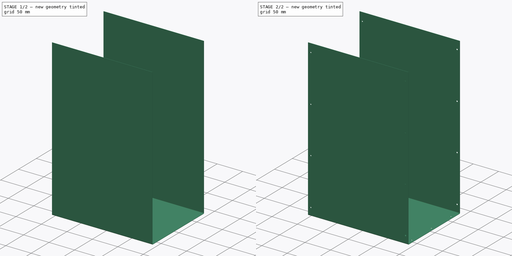
[diagram: build sequence overview — one tinted view per stage of 2, left to right]
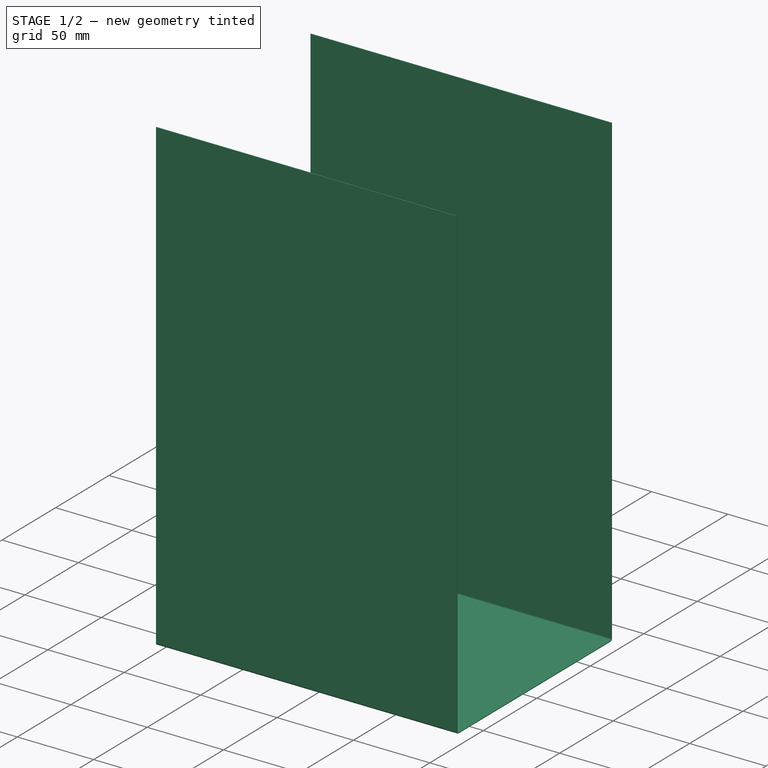
[diagram: stage 1 of 2 — iso view after this stage's code; geometry added in this stage tinted green]
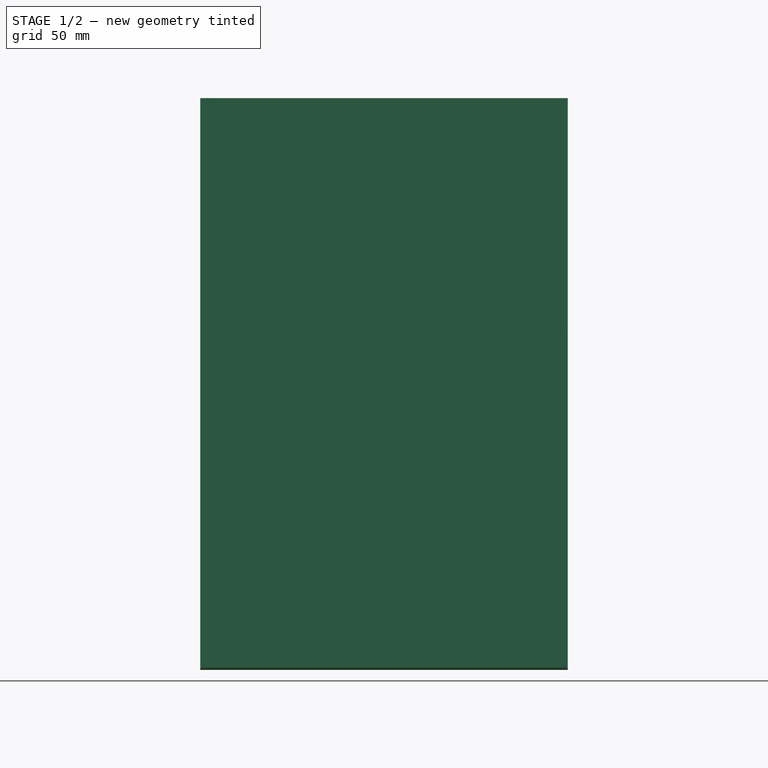
[diagram: stage 1 of 2 — front view after this stage's code; geometry added in this stage tinted green]
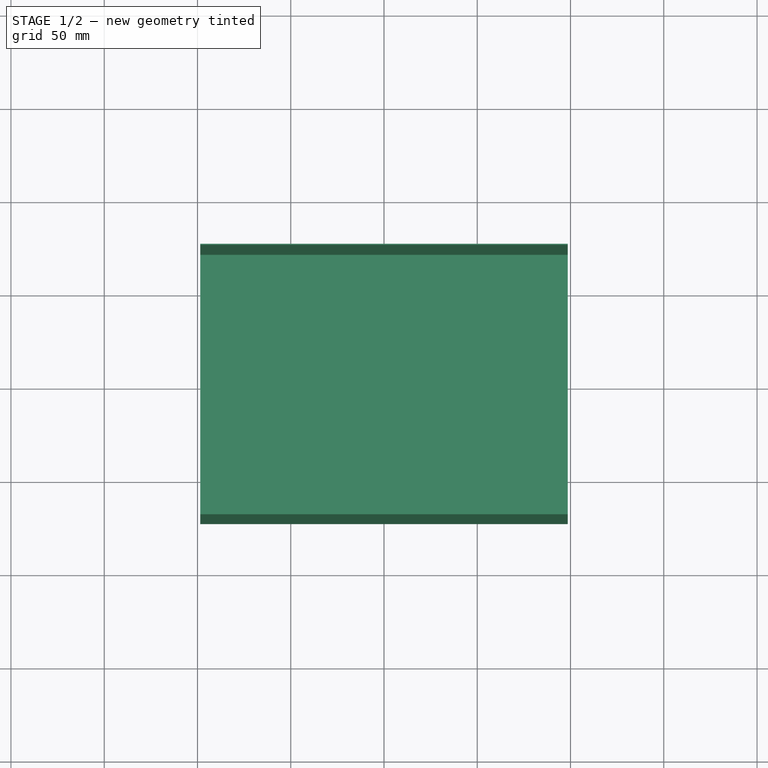
[diagram: stage 1 of 2 — top view after this stage's code; geometry added in this stage tinted green]
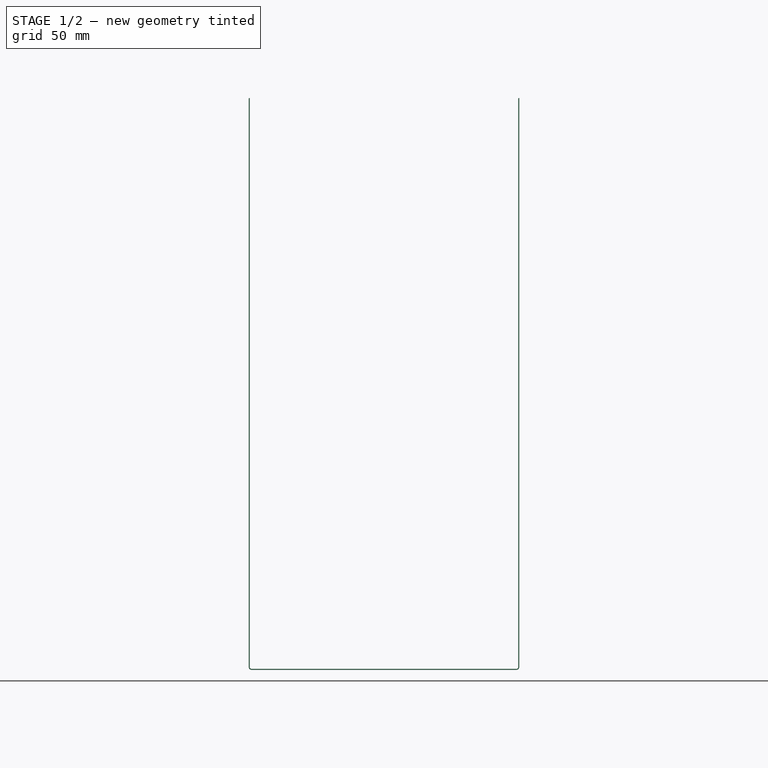
[diagram: stage 1 of 2 — right view after this stage's code; geometry added in this stage tinted green]
FCSTD DOCUMENT  (FreeCAD 0.16RUnknown)
Label: cover_top
License: CreativeCommons Attribution-ShareAlike
LicenseURL: http://creativecommons.org/licenses/by-sa/4.0/
objects: Drawing::FeatureViewPython×21, Sketcher::SketchObject×3, PartDesign::Pocket×2, Drawing::FeatureViewPart×2, PartDesign::Pad×1, Part::FeaturePython×1, Part::Feature×1, Drawing::FeaturePage×1
note: 11 computed .brp shape members not serialized (recipe doc carries the construction recipe); baked Part::Feature solids carry a one-line shape summary decoded from their .brp

FEATURE [Sketcher::SketchObject] Sketch
  sketch-geometry (4):
    g0: LineSegment StartX=-98.5 StartY=-71 StartZ=0 EndX=98.5 EndY=-71 EndZ=0
    g1: LineSegment StartX=98.5 StartY=-71 StartZ=0 EndX=98.5 EndY=71 EndZ=0
    g2: LineSegment StartX=98.5 StartY=71 StartZ=0 EndX=-98.5 EndY=71 EndZ=0
    g3: LineSegment StartX=-98.5 StartY=71 StartZ=0 EndX=-98.5 EndY=-71 EndZ=0
  constraints (12):
    c: Coincident(g0,g1)
    c: Coincident(g1,g2)
    c: Coincident(g2,g3)
    c: Horizontal(g0)
    c: Horizontal(g2)
    c: Vertical(g1)
    c: Vertical(g3)
    c: Coincident(g3,g0)
    c: DistanceY(g1,g1) = 142  'width'
    c: DistanceX(g2,g2) = 197  'L'
    c: Symmetric(g2,g1,g-2)
    c: Symmetric(g0,g1,g-1)
FEATURE [PartDesign::Pad] Pad
  Length = 0.5
  Length2 = 100
  Sketch = -> Sketch
  Type = 0
FEATURE [Part::FeaturePython] Bend  # WARN: FeaturePython — macro-defined, semantics opaque (R4)
  angle = 90
  baseObject = -> Pad [Face1,Face3]
  gap1 = 0
  gap2 = 0
  invert = false
  length = 305
  radius = 1
  reliefd = 1
  reliefw = 0.5
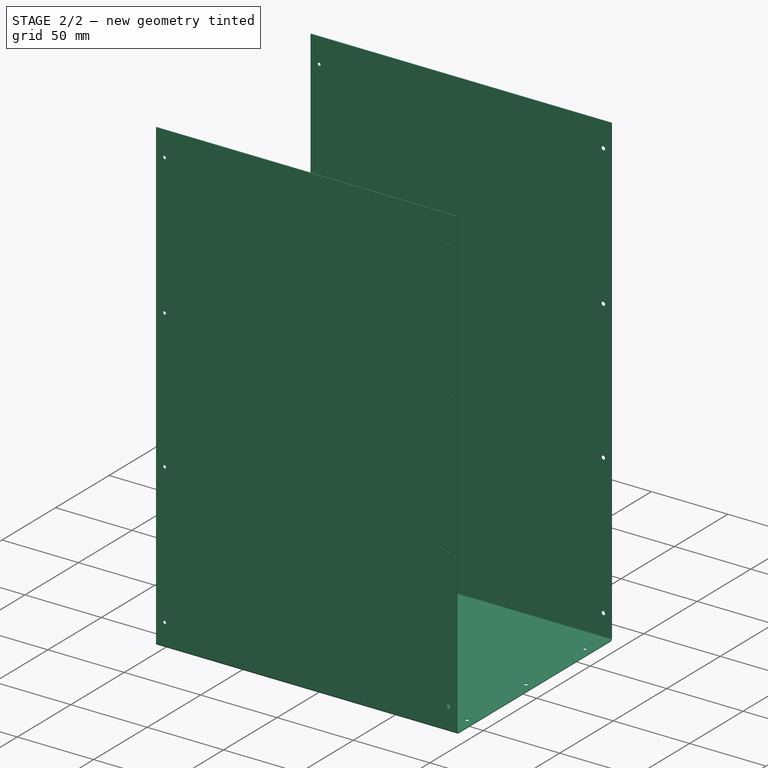
[diagram: stage 2 of 2 — iso view after this stage's code; geometry added in this stage tinted green]
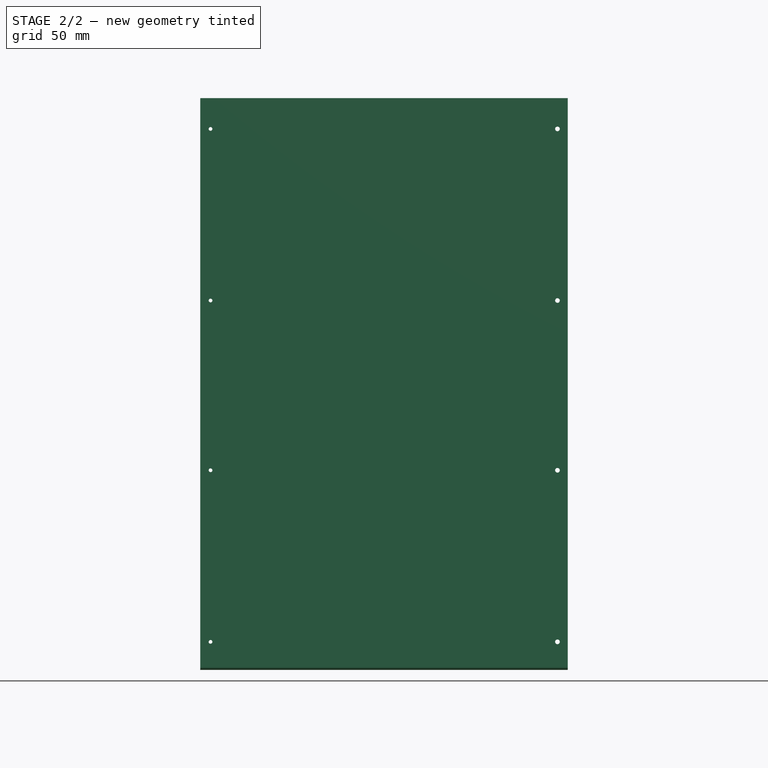
[diagram: stage 2 of 2 — front view after this stage's code; geometry added in this stage tinted green]
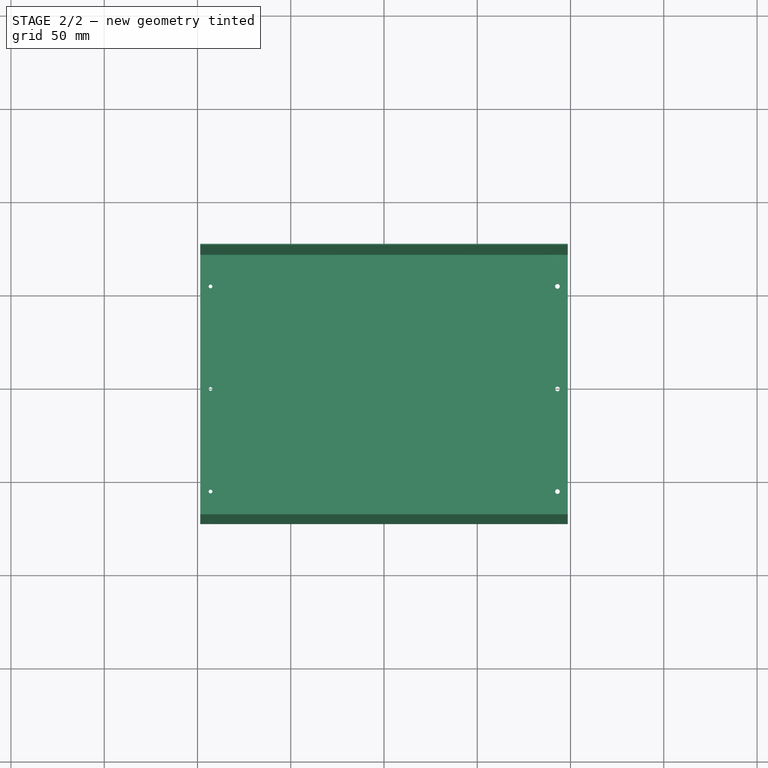
[diagram: stage 2 of 2 — top view after this stage's code; geometry added in this stage tinted green]
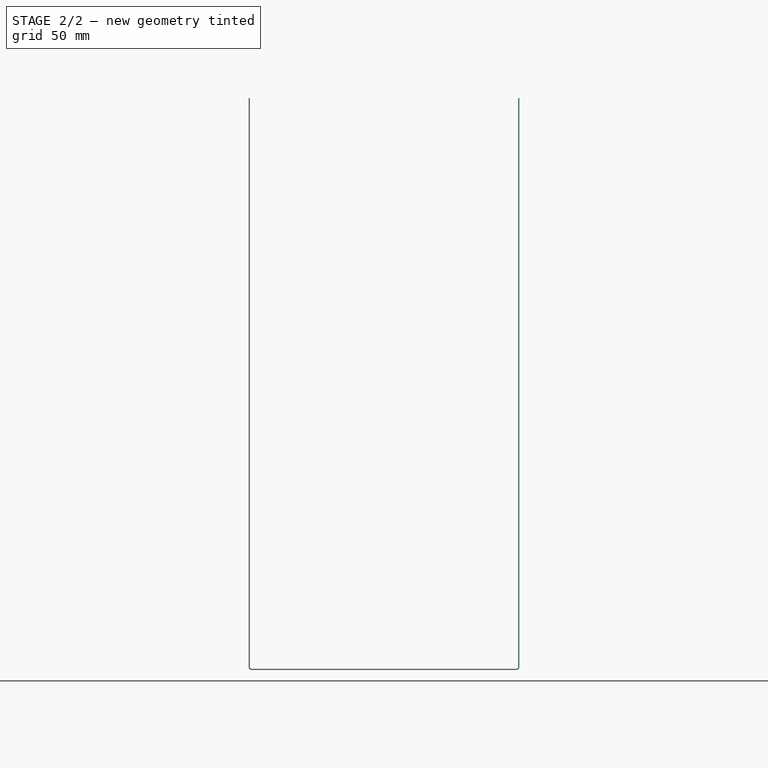
[diagram: stage 2 of 2 — right view after this stage's code; geometry added in this stage tinted green]
FEATURE [Sketcher::SketchObject] Sketch001  label="Sketch-side-rivet-screw-holes"
  Placement = pos=(0,-72.5,0) rot=(1,0,0;1.5708rad)
  Support = -> Bend [Face20]
  expr: Constraints[25] = round(Sketch001.Constraints.holes_l / 3)
  expr: Constraints.bend_L = Bend.length
  expr: Constraints.holes_l = Sketch001.Constraints.bend_L - 30
  expr: Constraints[4] = Sketch.Constraints.L / 2 - 5.5
  sketch-geometry (11):
    g0: Circle CenterX=-93 CenterY=15 CenterZ=0 NormalX=0 NormalY=0 NormalZ=1 Radius=1
    g1: Circle CenterX=-93 CenterY=107 CenterZ=0 NormalX=0 NormalY=0 NormalZ=1 Radius=1
    g2: Circle CenterX=-93 CenterY=198 CenterZ=0 NormalX=0 NormalY=0 NormalZ=1 Radius=1
    g3: Circle CenterX=-93 CenterY=290 CenterZ=0 NormalX=0 NormalY=0 NormalZ=1 Radius=1
    g4: Circle CenterX=93 CenterY=15 CenterZ=0 NormalX=0 NormalY=0 NormalZ=1 Radius=1.25
    g5: Circle CenterX=93 CenterY=107 CenterZ=0 NormalX=0 NormalY=0 NormalZ=1 Radius=1.25
    g6: Circle CenterX=93 CenterY=198 CenterZ=0 NormalX=0 NormalY=0 NormalZ=1 Radius=1.25
    g7: Circle CenterX=93 CenterY=290 CenterZ=0 NormalX=0 NormalY=0 NormalZ=1 Radius=1.25
    g8: LineSegment [constr] StartX=-93 StartY=15 StartZ=0 EndX=-93 EndY=107 EndZ=0
    g9: LineSegment [constr] StartX=-93 StartY=198 StartZ=0 EndX=-93 EndY=290 EndZ=0
    g10: LineSegment [constr] StartX=0 StartY=0 StartZ=0 EndX=0 EndY=305 EndZ=0
  constraints (27):
    c: Equal(g0,g1)
    c: Equal(g1,g2)
    c: Equal(g2,g3)
    c: Radius(g0) = 1
    c: DistanceX(g0,g-1) = 93
    c: DistanceY(g-1,g0) = 15
    c: Equal(g7,g6)
    c: Equal(g6,g5)
    c: Equal(g5,g4)
    c: Symmetric(g0,g4,g-2)
    c: Symmetric(g1,g5,g-2)
    c: Symmetric(g2,g6,g-2)
    c: Symmetric(g3,g7,g-2)
    c: Radius(g4) = 1.25
    c: Coincident(g8,g0)
    c: Coincident(g8,g1)
    c: Vertical(g8)
    c: Coincident(g9,g2)
    c: Coincident(g9,g3)
    c: Equal(g9,g8)
    c: Coincident(g10,g-1)
    c: PointOnObject(g10,g-2)
    c: DistanceY(g10,g10) = 305  'bend_L'
    c: Vertical(g9)
    c: PointOnObject(g2,g8)
    c: DistanceY(g9,g9) = 92
    c: DistanceY(g0,g3) = 275  'holes_l'
FEATURE [PartDesign::Pocket] Pocket  label="Pocket-side-rivet-screw-holes"
  Length = 5
  Sketch = -> Sketch001
  Type = 1
FEATURE [Sketcher::SketchObject] Sketch002  label="Sketch-top-rivet-screw-holes"
  Placement = pos=(0,0,0) rot=(1,0,0;3.14159rad)
  Support = -> Pocket [Face20]
  expr: Constraints[13] = Sketch.Constraints.width - 32
  expr: Constraints[9] = Sketch.Constraints.L / 2 - 5.5
  sketch-geometry (8):
    g0: Circle CenterX=-93 CenterY=55 CenterZ=0 NormalX=0 NormalY=0 NormalZ=1 Radius=1
    g1: Circle CenterX=-93 CenterY=-55 CenterZ=0 NormalX=0 NormalY=0 NormalZ=1 Radius=1
    g2: Circle CenterX=93 CenterY=55 CenterZ=0 NormalX=0 NormalY=0 NormalZ=1 Radius=1.25
    g3: Circle CenterX=93 CenterY=-55 CenterZ=0 NormalX=0 NormalY=0 NormalZ=1 Radius=1.25
    g4: LineSegment [constr] StartX=93 StartY=55 StartZ=0 EndX=93 EndY=-55 EndZ=0
    g5: LineSegment [constr] StartX=-93 StartY=55 StartZ=0 EndX=-93 EndY=-55 EndZ=0
    g6: Circle CenterX=93 CenterY=0 CenterZ=0 NormalX=0 NormalY=0 NormalZ=1 Radius=1.25
    g7: Circle CenterX=-93 CenterY=0 CenterZ=0 NormalX=0 NormalY=0 NormalZ=1 Radius=1
  constraints (23):
    c: Coincident(g4,g2)
    c: Coincident(g4,g3)
    c: Coincident(g5,g0)
    c: Coincident(g5,g1)
    c: Vertical(g5)
    c: Vertical(g4)
    c: Equal(g4,g0)
    c: Equal(g0,g1)
    c: Equal(g3,g2)
    c: DistanceX(g1,g-1) = 93
    c: Symmetric(g1,g3,g-2)
    c: Equal(g3,g5)
    c: Equal(g5,g4)
    c: DistanceY(g5,g5) = 110
    c: Symmetric(g1,g0,g-1)
    c: Radius(g3) = 1.25
    c: Radius(g1) = 1
    c: PointOnObject(g6,g-1)
    c: Equal(g6,g3)
    c: PointOnObject(g6,g4)
    c: PointOnObject(g7,g-1)
    c: PointOnObject(g7,g5)
    c: Equal(g7,g1)
FEATURE [PartDesign::Pocket] Pocket001  label="Pocket-top-rivet-screw-holes"
  Length = 5
  Sketch = -> Sketch002
  Type = 1
FEATURE [Part::Feature] Unfold
  shape: bbox 197 x 755.8 x 0.5 mm, 44 faces (baked)
FEATURE [Drawing::FeatureViewPart] Ortho  label="Ortho_0_0"
  Direction = (0,0,1)
  HiddenWidth = 0.15
  LineWidth = 0.35
  Rotation = 90
  Scale = 0.25
  ShowHiddenLines = false
  ShowSmoothLines = false
  Source = -> Unfold
  Tolerance = 0.05
  ViewResult = <g id="Ortho_0_0"\n   transform="rotate(90,120,140) translate(120,140) scale(0.25,0.25)"\n  >\n<g   stroke="rgb(0, 0, 0)"\n   stroke-width="1.4"\n   stroke-linecap="butt"\n   stroke-linejoin="miter"\n   fill="none"\n   transform="scale(1,-1)"\n  >\n<path id= "1" d=" M -98.5 -72.8852 L -98.5 -377.885 " />\n<path id= "2" d=" M -98.5 -72.8852 L 98.5 -72.8852 " />\n<path id= "3" d=" M -98.5 -377.885 L 98.5 -377.885 " />\n<path id= "4" d=" M 98.5 -72.8852 L 98.5 -377.885 " />\n<circle cx ="-93" cy ="-269.385" r ="1" /><circle cx ="-93" cy ="-361.385" r ="1" /><circle cx ="-93" cy ="-178.385" r ="1" /><circle cx ="-93" cy ="-86.3852" r ="1" /><circle cx ="93" cy ="-269.385" r ="1.25" /><circle cx ="93" cy ="-361.385" r ="1.25" /><circle cx ="93" cy ="-86.3852" r ="1.25" /><circle cx ="93" cy ="-178.385" r ="1.25" /><path id= "13" d=" M 98.5 -71 L 98.5 -72.8852 " />\n<path id= "14" d=" M 98.5 -71 L -98.5 -71 " />\n<path id= "15" d=" M -98.5 -71 L -98.5 -72.8852 " />\n<path id= "16" d=" M 98.5 72.8852 L 98.5 377.885 " />\n<path id= "17" d=" M 98.5 72.8852 L -98.5 72.8852 " />\n<path id= "18" d=" M 98.5 377.885 L -98.5 377.885 " />\n<path id= "19" d=" M -98.5 72.8852 L -98.5 377.885 " />\n<circle cx ="-93" cy ="269.385" r ="1" /><circle cx ="-93" cy ="361.385" r ="1" /><circle cx ="-93" cy ="178.385" r ="1" /><circle cx ="-93" cy ="86.3852" r ="1" /><circle cx ="93" cy ="269.385" r ="1.25" /><circle cx ="93" cy ="361.385" r ="1.25" /><circle cx ="93" cy ="86.3852" r ="1.25" /><circle cx ="93" cy ="178.385" r ="1.25" /><path id= "28" d=" M -98.5 71 L -98.5 72.8852 " />\n<path id= "29" d=" M -98.5 71 L 98.5 71 " />\n<path id= "30" d=" M 98.5 71 L 98.5 72.8852 " />\n<path id= "31" d=" M -98.5 71 L -98.5 -71 " />\n<path id= "32" d=" M 98.5 -71 L 98.5 71 " />\n<circle cx ="93" cy ="-55" r ="1.25" /><circle cx ="93" cy ="0" r ="1.25" /><circle cx ="93" cy ="55" r ="1.25" /><circle cx ="-93" cy ="55" r ="1" /><circle cx ="-93" cy ="0" r ="1" /><circle cx ="-93" cy ="-55" r ="1" /></g>\n</g>
  Visible = true
  X = 120
  Y = 140
FEATURE [Drawing::FeatureViewPart] Ortho002  label="Ortho_1_1"
  Direction = (0.57735,0.57735,-0.57735)
  HiddenWidth = 0.15
  LineWidth = 0.35
  Rotation = -120
  Scale = 0.25
  ShowHiddenLines = false
  ShowSmoothLines = false
  Source = -> Pocket001
  Tolerance = 0.05
  ViewResult = <blob: 7303 chars omitted>
  Visible = true
  X = 250
  Y = 30
FEATURE [Drawing::FeatureViewPython] centerLines001  # drawing view (typed FeaturePython)
  Rotation = 0
  ViewResult = <g transform="scale(0.250000,0.250000)" stroke="rgb(0,0,255)"  stroke-width="1.280000" > <path d="M 480.000000,461.500000 L 480.000000,449.500000 M 480.000000,441.500000 L 480.000000,417.500000 M 480.000000,409.500000 L 480.000000,400.000000 "/>\n<path d="M 480.000000,461.500000 L 480.000000,473.500000 M 480.000000,481.500000 L 480.000000,505.500000 M 480.000000,513.500000 L 480.000000,525.500000 M 480.000000,533.500000 L 480.000000,557.500000 M 480.000000,565.500000 L 480.000000,577.500000 M 480.000000,585.500000 L 480.000000,609.500000 M 480.000000,617.500000 L 480.000000,629.500000 M 480.000000,637.500000 L 480.000000,661.500000 M 480.000000,669.500000 L 480.000000,681.500000 M 480.000000,689.500000 L 480.000000,713.500000 M 480.000000,721.500000 L 480.000000,722.000000 "/> </g> 
  Visible = true
  X = 0
  Y = 0
  centerLine_color = rgb(0,0,255)
  centerLine_len_dash = 6
  centerLine_len_dot = 3
  centerLine_len_gap = 2
  centerLine_width = 0.32
  click1_x = 119.5
  click1_y = 100
  click2_x = 119.5
  click2_y = 180.5
FEATURE [Drawing::FeatureViewPython] dia001  # drawing view (typed FeaturePython)
  Rotation = 0
  ViewResult = <g>  <circle cx ="52.653750" cy ="116.750000" r="0.250000" stroke="none" fill="rgb(0,0,255)" /> \n<line x1="56.500000" y1="110.000000" x2="52.529980" y2="116.967212" style="stroke:rgb(0,0,255);stroke-width:0.20" />\n<polygon points="52.777520,116.532788 55.131612,114.421331 54.757847,113.057402 53.393919,113.431167" style="fill:rgb(0,0,255);stroke:rgb(0,0,255);stroke-width:0" />\n<polygon points="52.529980,116.967212 50.175888,119.078669 50.549653,120.442598 51.913581,120.068833" style="fill:rgb(0,0,255);stroke:rgb(0,0,255);stroke-width:0" />\n<line x1="56.500000" y1="110.000000" x2="64.000000" y2="110.000000" style="stroke:rgb(0,0,255);stroke-width:0.20" />\n<text x="60.250000" y="108.000000" font-family="inherit" font-size="3.6" fill="rgb(0,0,255)" text-anchor="middle" transform="rotate(0.000000 60.250000,108.000000)" >Ø2</text> </g>
  Visible = true
  X = 0
  Y = 0
  arrowL1 = 3
  arrowL2 = 1
  arrowW = 2
  arrow_scheme = 0
  autoPlaceOffset = 2
  autoPlaceText = true
  centerPointDia = 0.5
  click1_x = 56.5
  click1_y = 110
  click2_x = 64
  click2_y = 109.5
  click3_x = 64
  click3_y = 109.5
  comma_decimal_place = false
  lineColor = rgb(0,0,255)
  strokeWidth = 0.2
  textFormat_circular = Ø%(value)3.3f
  textRenderer_color = rgb(0,0,255)
  textRenderer_family = inherit
  textRenderer_size = 3.6
  unit_custom_scale = 1
  unit_scheme = 0
FEATURE [Drawing::FeatureViewPython] dia002  # drawing view (typed FeaturePython)
  Rotation = 0
  ViewResult = <g>  <circle cx ="52.653750" cy ="163.250000" r="0.250000" stroke="none" fill="rgb(0,0,255)" /> \n<line x1="56.500000" y1="170.000000" x2="52.499037" y2="162.978485" style="stroke:rgb(0,0,255);stroke-width:0.20" />\n<polygon points="52.808463,163.521515 53.424861,166.623136 54.788789,166.996900 55.162554,165.632972" style="fill:rgb(0,0,255);stroke:rgb(0,0,255);stroke-width:0" />\n<polygon points="52.499037,162.978485 51.882639,159.876864 50.518711,159.503100 50.144946,160.867028" style="fill:rgb(0,0,255);stroke:rgb(0,0,255);stroke-width:0" />\n<line x1="56.500000" y1="170.000000" x2="67.000000" y2="170.000000" style="stroke:rgb(0,0,255);stroke-width:0.20" />\n<text x="61.750000" y="168.000000" font-family="inherit" font-size="3.6" fill="rgb(0,0,255)" text-anchor="middle" transform="rotate(0.000000 61.750000,168.000000)" >Ø2.5</text> </g>
  Visible = true
  X = 0
  Y = 0
  arrowL1 = 3
  arrowL2 = 1
  arrowW = 2
  arrow_scheme = 0
  autoPlaceOffset = 2
  autoPlaceText = true
  centerPointDia = 0.5
  click1_x = 56.5
  click1_y = 170
  click2_x = 67
  click2_y = 170.5
  click3_x = 67
  click3_y = 170.5
  comma_decimal_place = false
  lineColor = rgb(0,0,255)
  strokeWidth = 0.2
  textFormat_circular = Ø%(value)3.3f
  textRenderer_color = rgb(0,0,255)
  textRenderer_family = inherit
  textRenderer_size = 3.6
  unit_custom_scale = 1
  unit_scheme = 0
FEATURE [Drawing::FeatureViewPython] dim001  # drawing view (typed FeaturePython)
  Rotation = 0
  ViewResult = <g> \n  <line x1="216.471250" y1="164.625000" x2="231.000000" y2="164.625000" style="stroke:rgb(0,0,255);stroke-width:0.20" />\n<line x1="216.471250" y1="115.375000" x2="231.000000" y2="115.375000" style="stroke:rgb(0,0,255);stroke-width:0.20" />\n<line x1="230.000000" y1="164.625000" x2="230.000000" y2="115.375000" style="stroke:rgb(0,0,255);stroke-width:0.20" /> \n  <polygon points="230.000000,115.375000 229.000000,118.375000 230.000000,119.375000 231.000000,118.375000" style="fill:rgb(0,0,255);stroke:rgb(0,0,255);stroke-width:0" /><polygon points="230.000000,164.625000 231.000000,161.625000 230.000000,160.625000 229.000000,161.625000" style="fill:rgb(0,0,255);stroke:rgb(0,0,255);stroke-width:0" /> \n  <text x="228.000000" y="140.000000" font-family="inherit" font-size="3.6" fill="rgb(0,0,255)" text-anchor="middle" transform="rotate(-90.000000 228.000000,140.000000)" >197</text> </g>
  Visible = true
  X = 0
  Y = 0
  arrowL1 = 3
  arrowL2 = 1
  arrowW = 2
  arrow_scheme = 0
  autoPlaceOffset = 2
  autoPlaceText = true
  click1_x = 230
  click1_y = 137
  click2_x = 230
  click2_y = 137
  comma_decimal_place = false
  dimension_line_overshoot = 1
  gap_datum_points = 2
  halfDimension_linear = false
  lineColor = rgb(0,0,255)
  strokeWidth = 0.2
  textFormat_linear = %(value)3.1f
  textRenderer_color = rgb(0,0,255)
  textRenderer_family = inherit
  textRenderer_size = 3.6
  unit_custom_scale = 1
  unit_scheme = 0
FEATURE [Drawing::FeatureViewPython] dim002  # drawing view (typed FeaturePython)
  Rotation = 0
  ViewResult = <g> \n  <line x1="25.528750" y1="113.375000" x2="25.528750" y2="84.500000" style="stroke:rgb(0,0,255);stroke-width:0.20" />\n<line x1="214.471250" y1="113.375000" x2="214.471250" y2="84.500000" style="stroke:rgb(0,0,255);stroke-width:0.20" />\n<line x1="25.528750" y1="85.500000" x2="214.471250" y2="85.500000" style="stroke:rgb(0,0,255);stroke-width:0.20" /> \n  <polygon points="214.471250,85.500000 211.471250,84.500000 210.471250,85.500000 211.471250,86.500000" style="fill:rgb(0,0,255);stroke:rgb(0,0,255);stroke-width:0" /><polygon points="25.528750,85.500000 28.528750,86.500000 29.528750,85.500000 28.528750,84.500000" style="fill:rgb(0,0,255);stroke:rgb(0,0,255);stroke-width:0" /> \n  <text x="120.000000" y="83.500000" font-family="inherit" font-size="3.6" fill="rgb(0,0,255)" text-anchor="middle" transform="rotate(0.000000 120.000000,83.500000)" >755.8</text> </g>
  Visible = true
  X = 0
  Y = 0
  arrowL1 = 3
  arrowL2 = 1
  arrowW = 2
  arrow_scheme = 0
  autoPlaceOffset = 2
  autoPlaceText = true
  click1_x = 190.5
  click1_y = 85.5
  click2_x = 190.5
  click2_y = 85.5
  comma_decimal_place = false
  dimension_line_overshoot = 1
  gap_datum_points = 2
  halfDimension_linear = false
  lineColor = rgb(0,0,255)
  strokeWidth = 0.2
  textFormat_linear = %(value)3.1f
  textRenderer_color = rgb(0,0,255)
  textRenderer_family = inherit
  textRenderer_size = 3.6
  unit_custom_scale = 1
  unit_scheme = 0
FEATURE [Drawing::FeatureViewPython] dim003  # drawing view (typed FeaturePython)
  Rotation = 0
  ViewResult = <g> \n  <line x1="120.000000" y1="98.000000" x2="120.000000" y2="97.000000" style="stroke:rgb(0,0,255);stroke-width:0.20" />\n<line x1="102.250000" y1="113.375000" x2="102.250000" y2="97.000000" style="stroke:rgb(0,0,255);stroke-width:0.20" />\n<line x1="120.000000" y1="98.000000" x2="102.250000" y2="98.000000" style="stroke:rgb(0,0,255);stroke-width:0.20" /> \n  <polygon points="102.250000,98.000000 105.250000,99.000000 106.250000,98.000000 105.250000,97.000000" style="fill:rgb(0,0,255);stroke:rgb(0,0,255);stroke-width:0" /><polygon points="120.000000,98.000000 117.000000,97.000000 116.000000,98.000000 117.000000,99.000000" style="fill:rgb(0,0,255);stroke:rgb(0,0,255);stroke-width:0" /> \n  <text x="111.125000" y="96.000000" font-family="inherit" font-size="3.6" fill="rgb(0,0,255)" text-anchor="middle" transform="rotate(0.000000 111.125000,96.000000)" >71</text> </g>
  Visible = true
  X = 0
  Y = 0
  arrowL1 = 3
  arrowL2 = 1
  arrowW = 2
  arrow_scheme = 0
  autoPlaceOffset = 2
  autoPlaceText = true
  click1_x = 110.5
  click1_y = 98
  click2_x = 110.5
  click2_y = 98
  comma_decimal_place = false
  dimension_line_overshoot = 1
  gap_datum_points = 2
  halfDimension_linear = false
  lineColor = rgb(0,0,255)
  strokeWidth = 0.2
  textFormat_linear = %(value)3.1f
  textRenderer_color = rgb(0,0,255)
  textRenderer_family = inherit
  textRenderer_size = 3.6
  unit_custom_scale = 1
  unit_scheme = 0
FEATURE [Drawing::FeatureViewPython] dim004  # drawing view (typed FeaturePython)
  Rotation = 0
  ViewResult = <g> \n  <line x1="101.778700" y1="113.375000" x2="101.778700" y2="97.000000" style="stroke:rgb(0,0,255);stroke-width:0.20" />\n<line x1="25.528750" y1="113.375000" x2="25.528750" y2="97.000000" style="stroke:rgb(0,0,255);stroke-width:0.20" />\n<line x1="101.778700" y1="98.000000" x2="25.528750" y2="98.000000" style="stroke:rgb(0,0,255);stroke-width:0.20" /> \n  <polygon points="25.528750,98.000000 28.528750,99.000000 29.528750,98.000000 28.528750,97.000000" style="fill:rgb(0,0,255);stroke:rgb(0,0,255);stroke-width:0" /><polygon points="101.778700,98.000000 98.778700,97.000000 97.778700,98.000000 98.778700,99.000000" style="fill:rgb(0,0,255);stroke:rgb(0,0,255);stroke-width:0" /> \n  <text x="63.653725" y="96.000000" font-family="inherit" font-size="3.6" fill="rgb(0,0,255)" text-anchor="middle" transform="rotate(0.000000 63.653725,96.000000)" >305</text> </g>
  Visible = true
  X = 0
  Y = 0
  arrowL1 = 3
  arrowL2 = 1
  arrowW = 2
  arrow_scheme = 0
  autoPlaceOffset = 2
  autoPlaceText = true
  click1_x = 86.5
  click1_y = 98
  click2_x = 86.5
  click2_y = 98
  comma_decimal_place = false
  dimension_line_overshoot = 1
  gap_datum_points = 2
  halfDimension_linear = false
  lineColor = rgb(0,0,255)
  strokeWidth = 0.2
  textFormat_linear = %(value)3.1f
  textRenderer_color = rgb(0,0,255)
  textRenderer_family = inherit
  textRenderer_size = 3.6
  unit_custom_scale = 1
  unit_scheme = 0
FEATURE [Drawing::FeatureViewPython] dim006  # drawing view (typed FeaturePython)
  Rotation = 0
  ViewResult = <g> \n  <line x1="29.653750" y1="165.250000" x2="29.653750" y2="181.000000" style="stroke:rgb(0,0,255);stroke-width:0.20" />\n<line x1="52.653750" y1="165.250000" x2="52.653750" y2="181.000000" style="stroke:rgb(0,0,255);stroke-width:0.20" />\n<line x1="29.653750" y1="180.000000" x2="52.653750" y2="180.000000" style="stroke:rgb(0,0,255);stroke-width:0.20" /> \n  <polygon points="52.653750,180.000000 49.653750,179.000000 48.653750,180.000000 49.653750,181.000000" style="fill:rgb(0,0,255);stroke:rgb(0,0,255);stroke-width:0" /><polygon points="29.653750,180.000000 32.653750,181.000000 33.653750,180.000000 32.653750,179.000000" style="fill:rgb(0,0,255);stroke:rgb(0,0,255);stroke-width:0" /> \n  <text x="41.153750" y="178.000000" font-family="inherit" font-size="3.6" fill="rgb(0,0,255)" text-anchor="middle" transform="rotate(0.000000 41.153750,178.000000)" >92</text> </g>
  Visible = true
  X = 0
  Y = 0
  arrowL1 = 3
  arrowL2 = 1
  arrowW = 2
  arrow_scheme = 0
  autoPlaceOffset = 2
  autoPlaceText = true
  click1_x = 49.5
  click1_y = 180
  click2_x = 49.5
  click2_y = 180
  comma_decimal_place = false
  dimension_line_overshoot = 1
  gap_datum_points = 2
  halfDimension_linear = false
  lineColor = rgb(0,0,255)
  strokeWidth = 0.2
  textFormat_linear = %(value)3.1f
  textRenderer_color = rgb(0,0,255)
  textRenderer_family = inherit
  textRenderer_size = 3.6
  unit_custom_scale = 1
  unit_scheme = 0
FEATURE [Drawing::FeatureViewPython] dim007  # drawing view (typed FeaturePython)
  Rotation = 0
  ViewResult = <g> \n  <line x1="52.653750" y1="165.250000" x2="52.653750" y2="181.000000" style="stroke:rgb(0,0,255);stroke-width:0.20" />\n<line x1="75.403750" y1="165.250000" x2="75.403750" y2="181.000000" style="stroke:rgb(0,0,255);stroke-width:0.20" />\n<line x1="52.653750" y1="180.000000" x2="75.403750" y2="180.000000" style="stroke:rgb(0,0,255);stroke-width:0.20" /> \n  <polygon points="75.403750,180.000000 72.403750,179.000000 71.403750,180.000000 72.403750,181.000000" style="fill:rgb(0,0,255);stroke:rgb(0,0,255);stroke-width:0" /><polygon points="52.653750,180.000000 55.653750,181.000000 56.653750,180.000000 55.653750,179.000000" style="fill:rgb(0,0,255);stroke:rgb(0,0,255);stroke-width:0" /> \n  <text x="64.028750" y="178.000000" font-family="inherit" font-size="3.6" fill="rgb(0,0,255)" text-anchor="middle" transform="rotate(0.000000 64.028750,178.000000)" >91</text> </g>
  Visible = true
  X = 0
  Y = 0
  arrowL1 = 3
  arrowL2 = 1
  arrowW = 2
  arrow_scheme = 0
  autoPlaceOffset = 2
  autoPlaceText = true
  click1_x = 63
  click1_y = 180
  click2_x = 63
  click2_y = 180
  comma_decimal_place = false
  dimension_line_overshoot = 1
  gap_datum_points = 2
  halfDimension_linear = false
  lineColor = rgb(0,0,255)
  strokeWidth = 0.2
  textFormat_linear = %(value)3.1f
  textRenderer_color = rgb(0,0,255)
  textRenderer_family = inherit
  textRenderer_size = 3.6
  unit_custom_scale = 1
  unit_scheme = 0
FEATURE [Drawing::FeatureViewPython] dim008  # drawing view (typed FeaturePython)
  Rotation = 0
  ViewResult = <g> \n  <line x1="98.403700" y1="165.250000" x2="98.403700" y2="181.000000" style="stroke:rgb(0,0,255);stroke-width:0.20" />\n<line x1="75.403750" y1="165.250000" x2="75.403750" y2="181.000000" style="stroke:rgb(0,0,255);stroke-width:0.20" />\n<line x1="98.403700" y1="180.000000" x2="75.403750" y2="180.000000" style="stroke:rgb(0,0,255);stroke-width:0.20" /> \n  <polygon points="75.403750,180.000000 78.403750,181.000000 79.403750,180.000000 78.403750,179.000000" style="fill:rgb(0,0,255);stroke:rgb(0,0,255);stroke-width:0" /><polygon points="98.403700,180.000000 95.403700,179.000000 94.403700,180.000000 95.403700,181.000000" style="fill:rgb(0,0,255);stroke:rgb(0,0,255);stroke-width:0" /> \n  <text x="86.903725" y="178.000000" font-family="inherit" font-size="3.6" fill="rgb(0,0,255)" text-anchor="middle" transform="rotate(0.000000 86.903725,178.000000)" >92</text> </g>
  Visible = true
  X = 0
  Y = 0
  arrowL1 = 3
  arrowL2 = 1
  arrowW = 2
  arrow_scheme = 0
  autoPlaceOffset = 2
  autoPlaceText = true
  click1_x = 89.5
  click1_y = 180
  click2_x = 89.5
  click2_y = 180
  comma_decimal_place = false
  dimension_line_overshoot = 1
  gap_datum_points = 2
  halfDimension_linear = false
  lineColor = rgb(0,0,255)
  strokeWidth = 0.2
  textFormat_linear = %(value)3.1f
  textRenderer_color = rgb(0,0,255)
  textRenderer_family = inherit
  textRenderer_size = 3.6
  unit_custom_scale = 1
  unit_scheme = 0
FEATURE [Drawing::FeatureViewPython] dim009  # drawing view (typed FeaturePython)
  Rotation = 0
  ViewResult = <g> \n  <line x1="212.346250" y1="163.250000" x2="225.000000" y2="163.250000" style="stroke:rgb(0,0,255);stroke-width:0.20" />\n<line x1="216.471250" y1="164.625000" x2="225.000000" y2="164.625000" style="stroke:rgb(0,0,255);stroke-width:0.20" />\n<line x1="224.000000" y1="163.250000" x2="224.000000" y2="164.625000" style="stroke:rgb(0,0,255);stroke-width:0.20" /> \n  <polygon points="224.000000,164.625000 223.000000,167.625000 224.000000,168.625000 225.000000,167.625000" style="fill:rgb(0,0,255);stroke:rgb(0,0,255);stroke-width:0" /><polygon points="224.000000,163.250000 225.000000,160.250000 224.000000,159.250000 223.000000,160.250000" style="fill:rgb(0,0,255);stroke:rgb(0,0,255);stroke-width:0" /> \n  <text x="222.000000" y="163.937500" font-family="inherit" font-size="3.6" fill="rgb(0,0,255)" text-anchor="middle" transform="rotate(-90.000000 222.000000,163.937500)" >5.5</text> </g>
  Visible = true
  X = 0
  Y = 0
  arrowL1 = 3
  arrowL2 = 1
  arrowW = 2
  arrow_scheme = 0
  autoPlaceOffset = 2
  autoPlaceText = true
  click1_x = 224
  click1_y = 164
  click2_x = 224
  click2_y = 164
  comma_decimal_place = false
  dimension_line_overshoot = 1
  gap_datum_points = 2
  halfDimension_linear = false
  lineColor = rgb(0,0,255)
  strokeWidth = 0.2
  textFormat_linear = %(value)3.1f
  textRenderer_color = rgb(0,0,255)
  textRenderer_family = inherit
  textRenderer_size = 3.6
  unit_custom_scale = 1
  unit_scheme = 0
FEATURE [Drawing::FeatureViewPython] dim010  # drawing view (typed FeaturePython)
  Rotation = 0
  ViewResult = <g> \n  <line x1="101.778700" y1="166.625000" x2="101.778700" y2="181.000000" style="stroke:rgb(0,0,255);stroke-width:0.20" />\n<line x1="98.403700" y1="165.250000" x2="98.403700" y2="181.000000" style="stroke:rgb(0,0,255);stroke-width:0.20" />\n<line x1="101.778700" y1="180.000000" x2="98.403700" y2="180.000000" style="stroke:rgb(0,0,255);stroke-width:0.20" /> \n  <polygon points="98.403700,180.000000 95.403700,179.000000 94.403700,180.000000 95.403700,181.000000" style="fill:rgb(0,0,255);stroke:rgb(0,0,255);stroke-width:0" /><polygon points="101.778700,180.000000 104.778700,181.000000 105.778700,180.000000 104.778700,179.000000" style="fill:rgb(0,0,255);stroke:rgb(0,0,255);stroke-width:0" /> \n  <text x="100.091200" y="178.000000" font-family="inherit" font-size="3.6" fill="rgb(0,0,255)" text-anchor="middle" transform="rotate(0.000000 100.091200,178.000000)" >13.5</text> </g>
  Visible = true
  X = 0
  Y = 0
  arrowL1 = 3
  arrowL2 = 1
  arrowW = 2
  arrow_scheme = 0
  autoPlaceOffset = 2
  autoPlaceText = true
  click1_x = 100
  click1_y = 180
  click2_x = 100
  click2_y = 180
  comma_decimal_place = false
  dimension_line_overshoot = 1
  gap_datum_points = 2
  halfDimension_linear = false
  lineColor = rgb(0,0,255)
  strokeWidth = 0.2
  textFormat_linear = %(value)3.1f
  textRenderer_color = rgb(0,0,255)
  textRenderer_family = inherit
  textRenderer_size = 3.6
  unit_custom_scale = 1
  unit_scheme = 0
FEATURE [Drawing::FeatureViewPython] dim011  # drawing view (typed FeaturePython)
  Rotation = 0
  ViewResult = <g> \n  <line x1="106.250000" y1="114.750000" x2="106.250000" y2="105.000000" style="stroke:rgb(0,0,255);stroke-width:0.20" />\n<line x1="120.000000" y1="102.000000" x2="120.000000" y2="107.000000" style="stroke:rgb(0,0,255);stroke-width:0.20" />\n<line x1="106.250000" y1="106.000000" x2="120.000000" y2="106.000000" style="stroke:rgb(0,0,255);stroke-width:0.20" /> \n  <polygon points="120.000000,106.000000 117.000000,105.000000 116.000000,106.000000 117.000000,107.000000" style="fill:rgb(0,0,255);stroke:rgb(0,0,255);stroke-width:0" /><polygon points="106.250000,106.000000 109.250000,107.000000 110.250000,106.000000 109.250000,105.000000" style="fill:rgb(0,0,255);stroke:rgb(0,0,255);stroke-width:0" /> \n  <text x="113.125000" y="104.000000" font-family="inherit" font-size="3.6" fill="rgb(0,0,255)" text-anchor="middle" transform="rotate(0.000000 113.125000,104.000000)" >55</text> </g>
  Visible = true
  X = 0
  Y = 0
  arrowL1 = 3
  arrowL2 = 1
  arrowW = 2
  arrow_scheme = 0
  autoPlaceOffset = 2
  autoPlaceText = true
  click1_x = 115
  click1_y = 106
  click2_x = 115
  click2_y = 106
  comma_decimal_place = false
  dimension_line_overshoot = 1
  gap_datum_points = 2
  halfDimension_linear = false
  lineColor = rgb(0,0,255)
  strokeWidth = 0.2
  textFormat_linear = %(value)3.1f
  textRenderer_color = rgb(0,0,255)
  textRenderer_family = inherit
  textRenderer_size = 3.6
  unit_custom_scale = 1
  unit_scheme = 0
FEATURE [Drawing::FeatureViewPython] centerLines002  # drawing view (typed FeaturePython)
  Rotation = 0
  ViewResult = <g transform="scale(0.250000,0.250000)" stroke="rgb(0,0,255)"  stroke-width="1.280000" > <path d="M 408.057400,461.500000 L 408.057400,449.500000 M 408.057400,441.500000 L 408.057400,417.500000 M 408.057400,409.500000 L 408.057400,397.500000 M 408.057400,389.500000 L 408.057400,365.500000 "/>\n<path d="M 408.057400,461.500000 L 408.057400,473.500000 M 408.057400,481.500000 L 408.057400,505.500000 M 408.057400,513.500000 L 408.057400,525.500000 M 408.057400,533.500000 L 408.057400,557.500000 M 408.057400,565.500000 L 408.057400,577.500000 M 408.057400,585.500000 L 408.057400,609.500000 M 408.057400,617.500000 L 408.057400,629.500000 M 408.057400,637.500000 L 408.057400,661.500000 M 408.057400,669.500000 L 408.057400,681.500000 M 408.057400,689.500000 L 408.057400,713.500000 M 408.057400,721.500000 L 408.057400,733.500000 M 408.057400,741.500000 L 408.057400,760.000000 "/> </g> 
  Visible = true
  X = 0
  Y = 0
  centerLine_color = rgb(0,0,255)
  centerLine_len_dash = 6
  centerLine_len_dot = 3
  centerLine_len_gap = 2
  centerLine_width = 0.32
  click1_x = 102
  click1_y = 90
  click2_x = 104.5
  click2_y = 190
FEATURE [Drawing::FeatureViewPython] centerLines003  # drawing view (typed FeaturePython)
  Rotation = 0
  ViewResult = <g transform="scale(0.250000,0.250000)" stroke="rgb(0,0,255)"  stroke-width="1.280000" > <path d="M 551.942600,658.500000 L 551.942600,670.500000 M 551.942600,678.500000 L 551.942600,702.500000 M 551.942600,710.500000 L 551.942600,722.500000 M 551.942600,730.500000 L 551.942600,754.500000 "/>\n<path d="M 551.942600,658.500000 L 551.942600,646.500000 M 551.942600,638.500000 L 551.942600,614.500000 M 551.942600,606.500000 L 551.942600,594.500000 M 551.942600,586.500000 L 551.942600,562.500000 M 551.942600,554.500000 L 551.942600,542.500000 M 551.942600,534.500000 L 551.942600,510.500000 M 551.942600,502.500000 L 551.942600,490.500000 M 551.942600,482.500000 L 551.942600,458.500000 M 551.942600,450.500000 L 551.942600,438.500000 M 551.942600,430.500000 L 551.942600,406.500000 M 551.942600,398.500000 L 551.942600,386.500000 M 551.942600,378.500000 L 551.942600,366.000000 "/> </g> 
  Visible = true
  X = 0
  Y = 0
  centerLine_color = rgb(0,0,255)
  centerLine_len_dash = 6
  centerLine_len_dot = 3
  centerLine_len_gap = 2
  centerLine_width = 0.32
  click1_x = 138.5
  click1_y = 190
  click2_x = 143.5
  click2_y = 91.5
FEATURE [Drawing::FeatureViewPython] dim005  # drawing view (typed FeaturePython)
  Rotation = 0
  ViewResult = <g> \n  <line x1="102.014350" y1="192.000000" x2="102.014350" y2="196.000000" style="stroke:rgb(0,0,255);stroke-width:0.20" />\n<line x1="120.000000" y1="182.500000" x2="120.000000" y2="196.000000" style="stroke:rgb(0,0,255);stroke-width:0.20" />\n<line x1="102.014350" y1="195.000000" x2="120.000000" y2="195.000000" style="stroke:rgb(0,0,255);stroke-width:0.20" /> \n  <polygon points="120.000000,195.000000 117.000000,194.000000 116.000000,195.000000 117.000000,196.000000" style="fill:rgb(0,0,255);stroke:rgb(0,0,255);stroke-width:0" /><polygon points="102.014350,195.000000 105.014350,196.000000 106.014350,195.000000 105.014350,194.000000" style="fill:rgb(0,0,255);stroke:rgb(0,0,255);stroke-width:0" /> \n  <text x="111.007175" y="193.000000" font-family="inherit" font-size="3.6" fill="rgb(0,0,255)" text-anchor="middle" transform="rotate(0.000000 111.007175,193.000000)" >71.9</text> </g>
  Visible = true
  X = 0
  Y = 0
  arrowL1 = 3
  arrowL2 = 1
  arrowW = 2
  arrow_scheme = 0
  autoPlaceOffset = 2
  autoPlaceText = true
  click1_x = 110.5
  click1_y = 195
  click2_x = 110.5
  click2_y = 195
  comma_decimal_place = false
  dimension_line_overshoot = 1
  gap_datum_points = 2
  halfDimension_linear = false
  lineColor = rgb(0,0,255)
  strokeWidth = 0.2
  textFormat_linear = %(value)3.1f
  textRenderer_color = rgb(0,0,255)
  textRenderer_family = inherit
  textRenderer_size = 3.6
  unit_custom_scale = 1
  unit_scheme = 0
FEATURE [Drawing::FeatureViewPython] text001  # drawing view (typed FeaturePython)
  Rotation = 0
  ViewResult = <g> <text x="97.500000" y="190.000000" font-family="inherit" font-size="5" fill="rgb(0,0,0)" text-anchor="inherit" transform="rotate(0.000000 97.500000,190.000000)" >A</text> </g>
  Visible = true
  X = 0
  Y = 0
  click1_x = 97.5
  click1_y = 190
  rotation = 0
  text = A
  textRenderer_addText_color = rgb(0,0,0)
  textRenderer_addText_family = inherit
  textRenderer_addText_size = 5
FEATURE [Drawing::FeatureViewPython] text002  # drawing view (typed FeaturePython)
  Rotation = 0
  ViewResult = <g> <text x="139.000000" y="190.000000" font-family="inherit" font-size="5" fill="rgb(0,0,0)" text-anchor="inherit" transform="rotate(0.000000 139.000000,190.000000)" >B</text> </g>
  Visible = true
  X = 0
  Y = 0
  click1_x = 139
  click1_y = 190
  rotation = 0
  text = B
  textRenderer_addText_color = rgb(0,0,0)
  textRenderer_addText_family = inherit
  textRenderer_addText_size = 5
FEATURE [Drawing::FeatureViewPython] table001  # drawing view (typed FeaturePython)
  Rotation = 0
  ViewResult = <blob: 2532 chars omitted>
  Visible = true
  X = 0
  Y = 0
  border_color = rgb(0,0,0)
  border_width = 0.3
  click1_x = 20
  click1_y = 20
  column_widths = [10,25,25,25]
  contents = Tag | Direction | Angle | Inner Radius | A | DOWN | 90 | 1mm | B | DOWN | 90 | 1mm
  extra_rows = 0
  padding_x = 1
  padding_y = 1
  row_heights = [5]
  textRenderer_table_color = rgb(0,0,0)
  textRenderer_table_family = inherit
  textRenderer_table_size = 4
FEATURE [Drawing::FeatureViewPython] text003  # drawing view (typed FeaturePython)
  Rotation = 0
  ViewResult = <g> <text x="19.500000" y="17.000000" font-family="inherit" font-size="5" fill="rgb(0,0,0)" text-anchor="inherit" transform="rotate(0.000000 19.500000,17.000000)" >Scale 0.25</text> </g>
  Visible = true
  X = 0
  Y = 0
  click1_x = 19.5
  click1_y = 17
  rotation = 0
  text = Scale 0.25
  textRenderer_addText_color = rgb(0,0,0)
  textRenderer_addText_family = inherit
  textRenderer_addText_size = 5
FEATURE [Drawing::FeatureViewPython] text004  # drawing view (typed FeaturePython)
  Rotation = 0
  ViewResult = <g> <text x="20.000000" y="11.000000" font-family="inherit" font-size="5" fill="rgb(0,0,0)" text-anchor="inherit" transform="rotate(0.000000 20.000000,11.000000)" >SatNOGS Rotator v3.1, cover_top</text> </g>
  Visible = true
  X = 0
  Y = 0
  click1_x = 20
  click1_y = 11
  rotation = 0
  text = SatNOGS Rotator v3.1, cover_top
  textRenderer_addText_color = rgb(0,0,0)
  textRenderer_addText_family = inherit
  textRenderer_addText_size = 5
FEATURE [Drawing::FeaturePage] Page
  Group = -> [Ortho,Ortho002,centerLines001,dia001,dia002,dim001,dim002,dim003,dim004,dim006,dim007,dim008,dim009,dim010,dim011,centerLines002,centerLines003,dim005,text001,text002,table001,text003,text004]
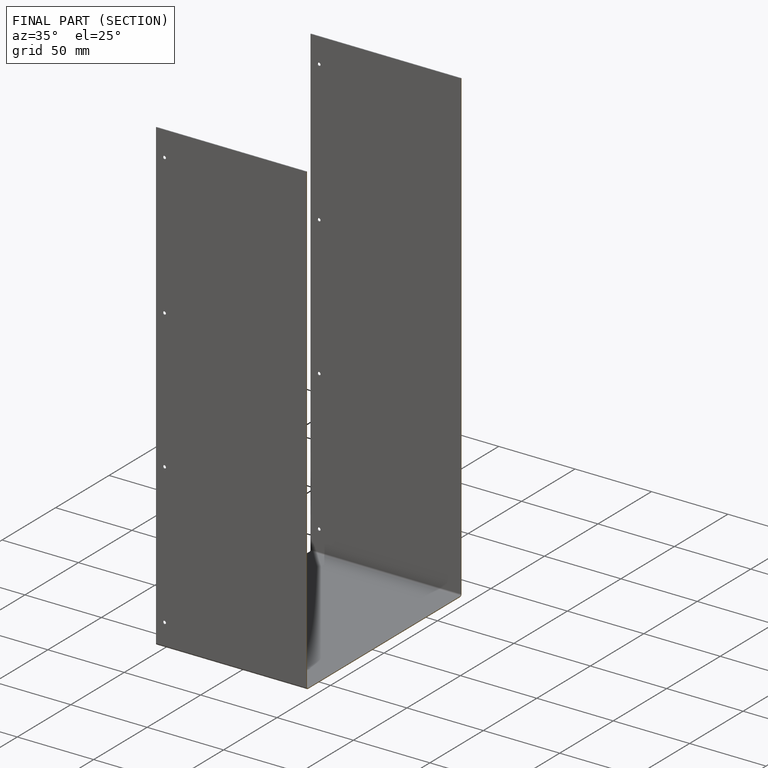
[diagram: finished part — half-section view (interior)]
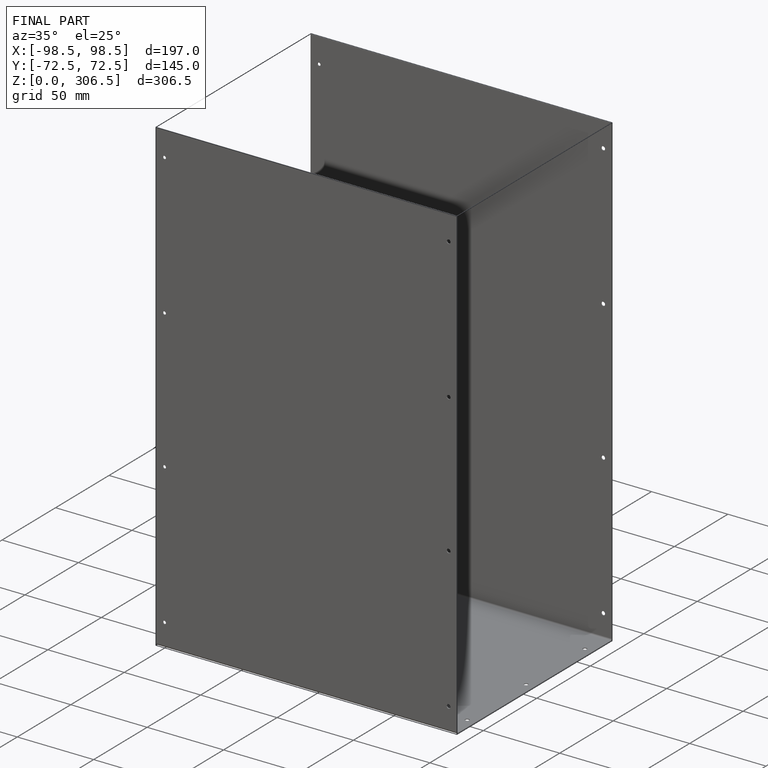
[diagram: finished part — iso view with bounding-box wireframe]
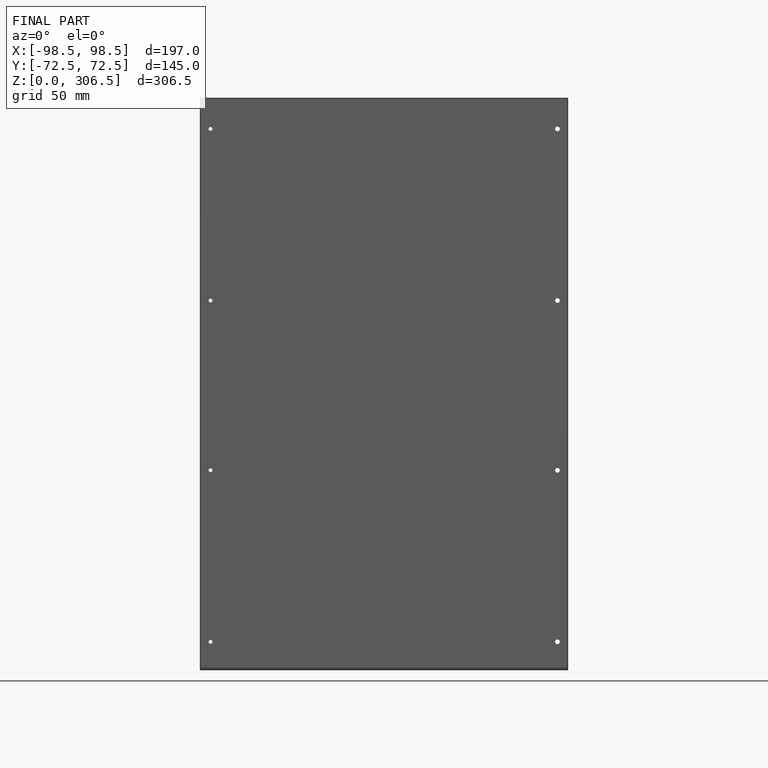
[diagram: finished part — front view with bounding-box wireframe]
